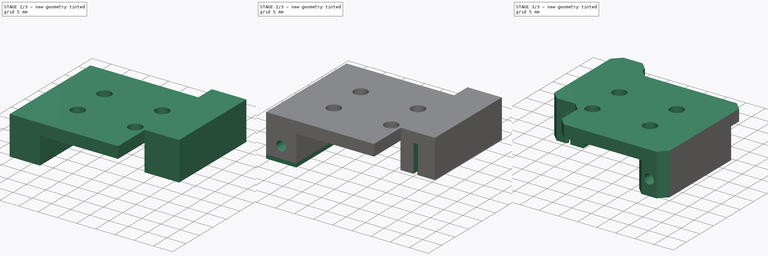
[diagram: build sequence overview — one tinted view per stage of 3, left to right]
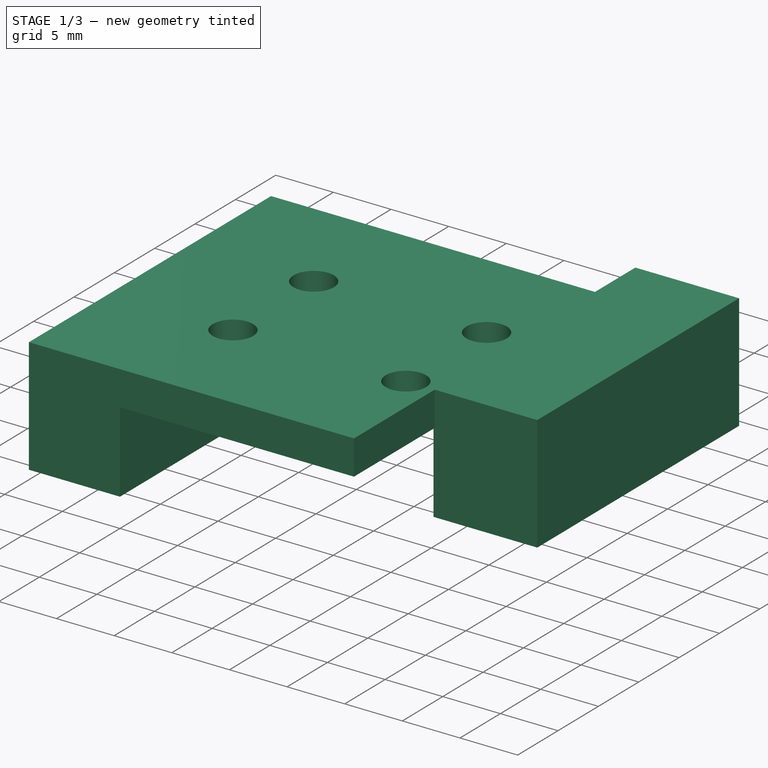
[diagram: stage 1 of 3 — iso view after this stage's code; geometry added in this stage tinted green]
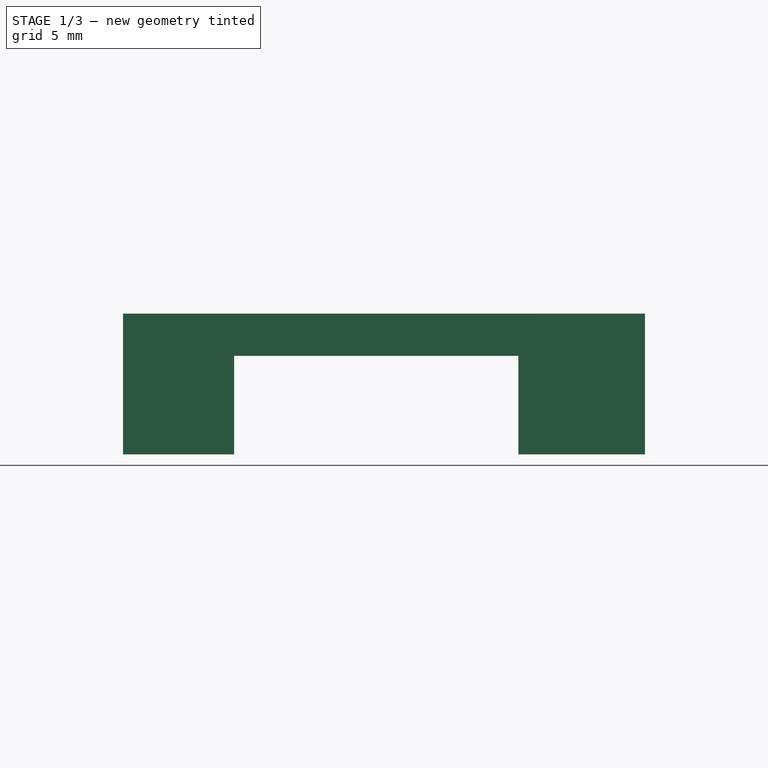
[diagram: stage 1 of 3 — front view after this stage's code; geometry added in this stage tinted green]
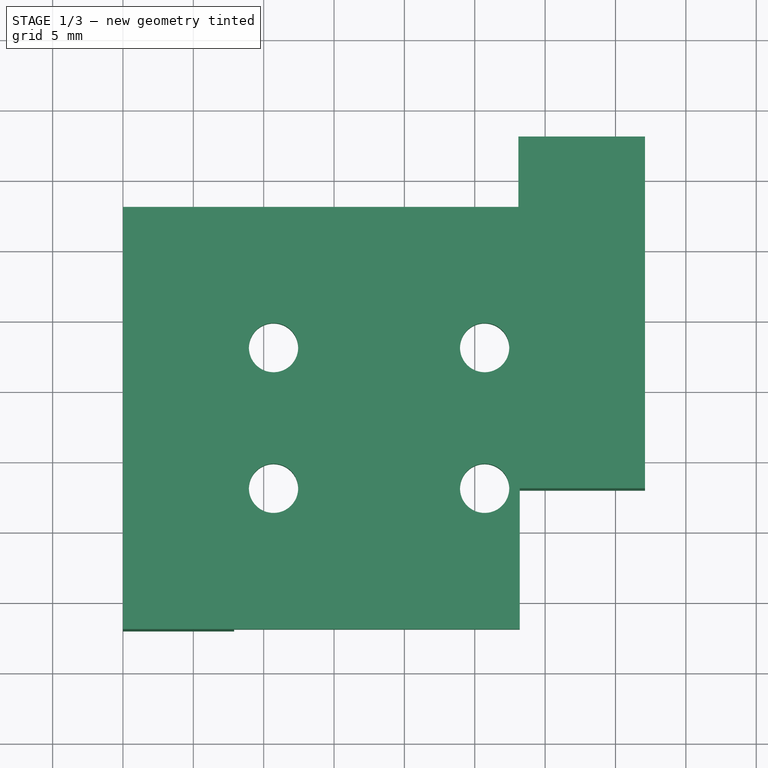
[diagram: stage 1 of 3 — top view after this stage's code; geometry added in this stage tinted green]
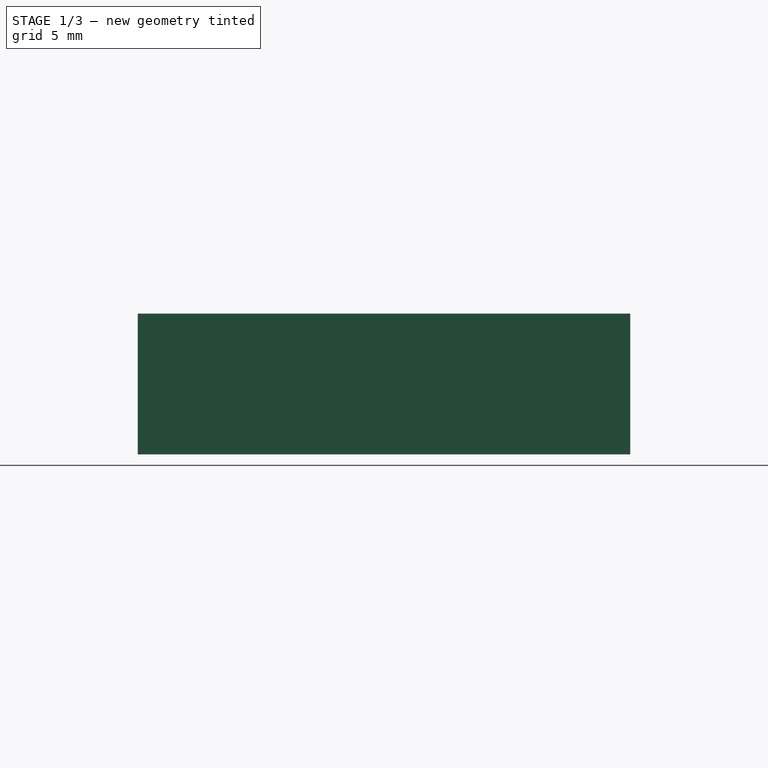
[diagram: stage 1 of 3 — right view after this stage's code; geometry added in this stage tinted green]
FCSTD DOCUMENT  (FreeCAD 0.20R29410 (Git))
Label: z-gantry-backplate-right
License: All rights reserved
LicenseURL: http://en.wikipedia.org/wiki/All_rights_reserved
objects: Sketcher::SketchObject×4, PartDesign::Pad×3, PartDesign::Plane×2, PartDesign::Pocket×1, PartDesign::Hole×1, PartDesign::Chamfer×1, PartDesign::Body×1, Part::Mirroring×1
note: 20 computed .brp shape members not serialized (recipe doc carries the construction recipe); baked Part::Feature solids carry a one-line shape summary decoded from their .brp

FEATURE [Sketcher::SketchObject] Sketch
  FullyConstrained = true
  MapMode = 5
  Support = -> [XY_Plane]
  sketch-geometry (15):
    g0: LineSegment StartX=10.7 StartY=38 StartZ=0 EndX=25.7 EndY=38 EndZ=0
    g1: LineSegment StartX=25.7 StartY=38 StartZ=0 EndX=25.7 EndY=28 EndZ=0
    g2: LineSegment StartX=25.7 StartY=28 StartZ=0 EndX=10.7 EndY=28 EndZ=0
    g3: LineSegment StartX=10.7 StartY=28 StartZ=0 EndX=10.7 EndY=38 EndZ=0
    g4: LineSegment StartX=0 StartY=48 StartZ=0 EndX=28.2 EndY=48 EndZ=0
    g5: LineSegment StartX=28.2 StartY=18 StartZ=0 EndX=-4.1211e-12 EndY=18 EndZ=0
    g6: LineSegment StartX=-4.1201e-12 StartY=18 StartZ=0 EndX=0 EndY=48 EndZ=0
    g7: Circle CenterX=10.7 CenterY=38 CenterZ=0 NormalX=0 NormalY=0 NormalZ=1 AngleXU=0 Radius=1.75
    g8: Circle CenterX=25.7 CenterY=38 CenterZ=0 NormalX=0 NormalY=0 NormalZ=1 AngleXU=0 Radius=1.75
    g9: Circle CenterX=25.7 CenterY=28 CenterZ=0 NormalX=0 NormalY=0 NormalZ=1 AngleXU=0 Radius=1.75
    g10: Circle CenterX=10.7 CenterY=28 CenterZ=0 NormalX=0 NormalY=0 NormalZ=1 AngleXU=0 Radius=1.75
    g11: LineSegment StartX=28.2 StartY=48 StartZ=0 EndX=0 EndY=48 EndZ=0
    g12: LineSegment StartX=0 StartY=48 StartZ=0 EndX=-4.1201e-12 EndY=18 EndZ=0
    g13: LineSegment StartX=-4.1201e-12 StartY=18 StartZ=0 EndX=28.2 EndY=18 EndZ=0
    g14: LineSegment StartX=28.2 StartY=18 StartZ=0 EndX=28.2 EndY=48 EndZ=0
  constraints (39):
    c: Coincident(g0,g1)
    c: Coincident(g1,g2)
    c: Coincident(g2,g3)
    c: Coincident(g3,g0)
    c: Horizontal(g0)
    c: Horizontal(g2)
    c: Vertical(g1)
    c: Vertical(g3)
    c: DistanceX(g0,g0) = 15
    c: DistanceY(g1,g1) = 10
    c: Coincident(g5,g6)
    c: Coincident(g6,g4)
    c: Horizontal(g5)
    c: DistanceY(g5,g4) = 30
    c: Coincident(g7,g0)
    c: Coincident(g8,g0)
    c: Coincident(g9,g1)
    c: Coincident(g10,g2)
    c: Diameter(g10) = 3.5
    c: Distance(g5,g-2) = 28.2
    c: Coincident(g11,g4)
    c: Coincident(g12,g11)
    c: Coincident(g12,g5)
    c: Coincident(g13,g12)
    c: Coincident(g14,g13)
    c: Vertical(g14)
    c: Equal(g9,g10)
    c: Equal(g10,g7)
    c: Equal(g7,g8)
    c: Equal(g11,g13)
    c: Horizontal(g11)
    c: DistanceX(g11,g11) = 28.2
    c: DistanceX(g8,g4) = 2.5
    c: DistanceY(g-1,g12) = 18
    c: DistanceX(g-1,g11) = 1.5e-15
    c: Coincident(g14,g11)
    c: Coincident(g4,g11)
    c: DistanceY(g12,g10) = 10
    c: Coincident(g5,g13)
FEATURE [PartDesign::Pad] Pad
  AllowMultiFace = false
  Direction = (0,0,1)
  Length = 3
  Length2 = 100
  Profile = -> Sketch
  Refine = true
  Type = 0
FEATURE [PartDesign::Plane] DatumPlane
  Length = 60
  MapMode = 5
  Placement = pos=(0,0,3) rot=(0,0,1;0rad)
  ResizeMode = 0
  Support = -> [Pad]
  Width = 60
FEATURE [Sketcher::SketchObject] Sketch002
  FullyConstrained = true
  MapMode = 5
  Placement = pos=(0,0,3) rot=(0,0,1;0rad)
  Support = -> [DatumPlane]
  sketch-geometry (8):
    g0: LineSegment StartX=37.1 StartY=53 StartZ=0 EndX=28.1 EndY=53 EndZ=0
    g1: LineSegment StartX=28.1 StartY=53 StartZ=0 EndX=28.1 EndY=28 EndZ=0
    g2: LineSegment StartX=28.1 StartY=28 StartZ=0 EndX=37.1 EndY=28 EndZ=0
    g3: LineSegment StartX=37.1 StartY=28 StartZ=0 EndX=37.1 EndY=53 EndZ=0
    g4: LineSegment StartX=0 StartY=43 StartZ=0 EndX=7.9 EndY=43 EndZ=0
    g5: LineSegment StartX=7.9 StartY=43 StartZ=0 EndX=7.9 EndY=18 EndZ=0
    g6: LineSegment StartX=7.9 StartY=18 StartZ=0 EndX=0 EndY=18 EndZ=0
    g7: LineSegment StartX=0 StartY=18 StartZ=0 EndX=0 EndY=43 EndZ=0
  constraints (24):
    c: Coincident(g0,g1)
    c: Coincident(g1,g2)
    c: Horizontal(g2)
    c: Coincident(g2,g3)
    c: Coincident(g3,g0)
    c: Vertical(g3)
    c: DistanceY(g3,g3) = 25
    c: Vertical(g1)
    c: Equal(g1,g3)
    c: DistanceX(g0,g0) = 9
    c: DistanceX(g-1,g1) = 28.1
    c: DistanceY(g-1,g1) = 28
    c: Coincident(g4,g5)
    c: Coincident(g5,g6)
    c: Coincident(g6,g7)
    c: Coincident(g7,g4)
    c: Horizontal(g4)
    c: Horizontal(g6)
    c: Vertical(g5)
    c: Vertical(g7)
    c: PointOnObject(g4,g-2)
    c: DistanceX(g4,g0) = 20.2
    c: DistanceY(g-1,g6) = 18
    c: DistanceY(g7,g7) = 25
FEATURE [PartDesign::Pad] Pad002
  AllowMultiFace = false
  BaseFeature = -> Pad
  Direction = (0,0,1)
  Length = 10
  Length2 = 100
  Profile = -> Sketch002
  Refine = true
  Reversed = true
  Type = 0
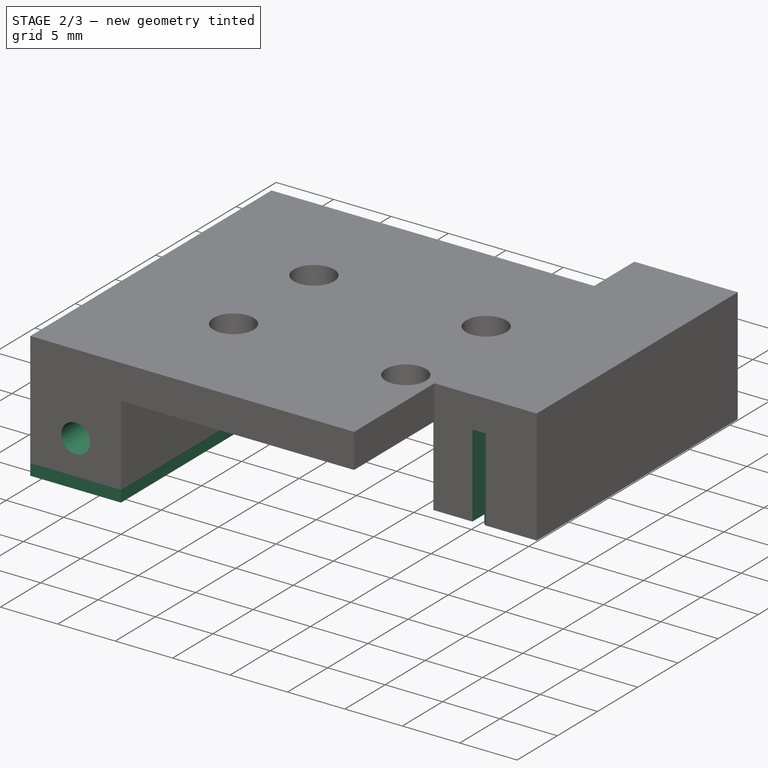
[diagram: stage 2 of 3 — iso view after this stage's code; geometry added in this stage tinted green]
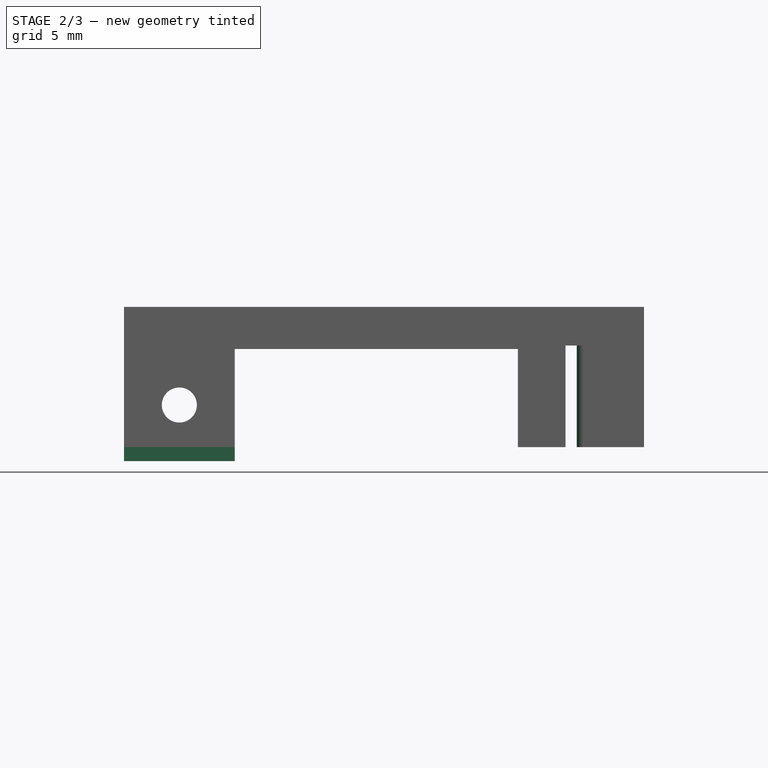
[diagram: stage 2 of 3 — front view after this stage's code; geometry added in this stage tinted green]
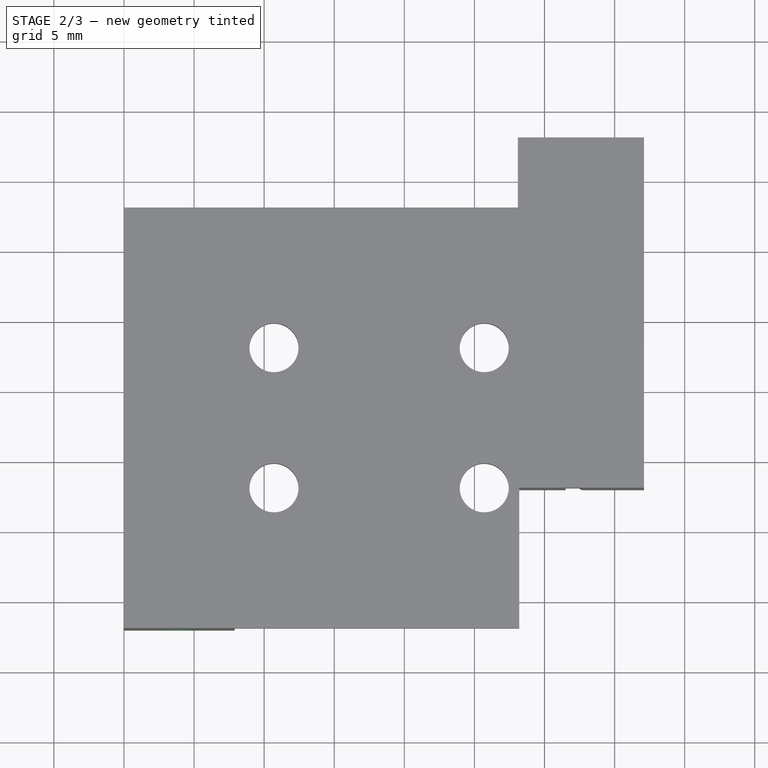
[diagram: stage 2 of 3 — top view after this stage's code; geometry added in this stage tinted green]
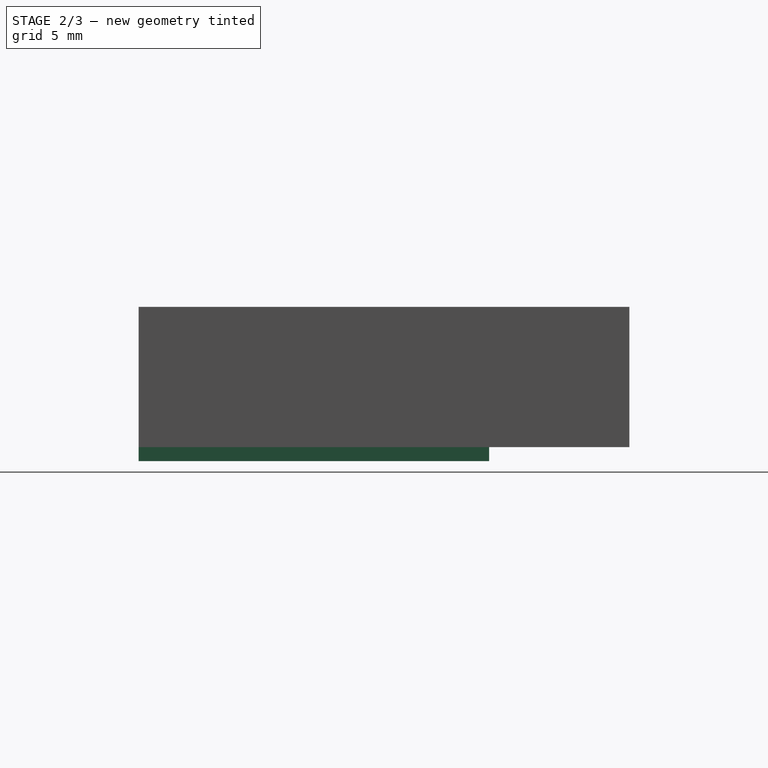
[diagram: stage 2 of 3 — right view after this stage's code; geometry added in this stage tinted green]
FEATURE [Sketcher::SketchObject] Sketch003  label="Teeth"
  AttachmentOffset = pos=(0,-66,0) rot=(0,0,1;0rad)
  FullyConstrained = true
  MapMode = 2
  Placement = pos=(-0.5,10,-7) rot=(0,0,1;0rad)
  sketch-geometry (34):
    g0: LineSegment StartX=33.3 StartY=48 StartZ=0 EndX=32 EndY=48 EndZ=0
    g1: LineSegment StartX=32 StartY=48 StartZ=0 EndX=32 EndY=18 EndZ=0
    g2: LineSegment StartX=32 StartY=18 StartZ=0 EndX=33.3 EndY=18 EndZ=0
    g3: LineSegment StartX=33.3 StartY=48 StartZ=0 EndX=33.3 EndY=18 EndZ=0
    g4: ArcOfCircle CenterX=33.3 CenterY=18.5 CenterZ=0 NormalX=0 NormalY=0 NormalZ=1 AngleXU=0 Radius=0.5 StartAngle=1.5708 EndAngle=4.71239
    g5: ArcOfCircle CenterX=33.3 CenterY=19.5 CenterZ=0 NormalX=0 NormalY=0 NormalZ=1 AngleXU=0 Radius=0.5 StartAngle=4.71239 EndAngle=7.85398
    g6: ArcOfCircle CenterX=33.3 CenterY=20.5 CenterZ=0 NormalX=0 NormalY=0 NormalZ=1 AngleXU=0 Radius=0.5 StartAngle=1.5708 EndAngle=4.71239
    g7: ArcOfCircle CenterX=33.3 CenterY=21.5 CenterZ=0 NormalX=0 NormalY=0 NormalZ=1 AngleXU=0 Radius=0.5 StartAngle=4.71239 EndAngle=7.85398
    g8: ArcOfCircle CenterX=33.3 CenterY=22.5 CenterZ=0 NormalX=0 NormalY=0 NormalZ=1 AngleXU=0 Radius=0.5 StartAngle=1.5708 EndAngle=4.71239
    g9: ArcOfCircle CenterX=33.3 CenterY=23.5 CenterZ=0 NormalX=0 NormalY=0 NormalZ=1 AngleXU=0 Radius=0.5 StartAngle=4.71239 EndAngle=7.85398
    g10: ArcOfCircle CenterX=33.3 CenterY=24.5 CenterZ=0 NormalX=0 NormalY=0 NormalZ=1 AngleXU=0 Radius=0.5 StartAngle=1.5708 EndAngle=4.71239
    g11: ArcOfCircle CenterX=33.3 CenterY=25.5 CenterZ=0 NormalX=0 NormalY=0 NormalZ=1 AngleXU=0 Radius=0.5 StartAngle=4.71239 EndAngle=7.85398
    g12: ArcOfCircle CenterX=33.3 CenterY=26.5 CenterZ=0 NormalX=0 NormalY=0 NormalZ=1 AngleXU=0 Radius=0.5 StartAngle=1.5708 EndAngle=4.71239
    g13: ArcOfCircle CenterX=33.3 CenterY=27.5 CenterZ=0 NormalX=0 NormalY=0 NormalZ=1 AngleXU=0 Radius=0.5 StartAngle=4.71239 EndAngle=7.85398
    g14: ArcOfCircle CenterX=33.3 CenterY=28.5 CenterZ=0 NormalX=0 NormalY=0 NormalZ=1 AngleXU=0 Radius=0.5 StartAngle=1.5708 EndAngle=4.71239
    g15: ArcOfCircle CenterX=33.3 CenterY=29.5 CenterZ=0 NormalX=0 NormalY=0 NormalZ=1 AngleXU=0 Radius=0.5 StartAngle=4.71239 EndAngle=7.85398
    g16: ArcOfCircle CenterX=33.3 CenterY=30.5 CenterZ=0 NormalX=0 NormalY=0 NormalZ=1 AngleXU=0 Radius=0.5 StartAngle=1.5708 EndAngle=4.71239
    g17: ArcOfCircle CenterX=33.3 CenterY=31.5 CenterZ=0 NormalX=0 NormalY=0 NormalZ=1 AngleXU=0 Radius=0.5 StartAngle=4.71239 EndAngle=7.85398
    g18: ArcOfCircle CenterX=33.3 CenterY=32.5 CenterZ=0 NormalX=0 NormalY=0 NormalZ=1 AngleXU=0 Radius=0.5 StartAngle=1.5708 EndAngle=4.71239
    g19: ArcOfCircle CenterX=33.3 CenterY=33.5 CenterZ=0 NormalX=0 NormalY=0 NormalZ=1 AngleXU=0 Radius=0.5 StartAngle=4.71239 EndAngle=7.85398
    g20: ArcOfCircle CenterX=33.3 CenterY=34.5 CenterZ=0 NormalX=0 NormalY=0 NormalZ=1 AngleXU=0 Radius=0.5 StartAngle=1.5708 EndAngle=4.71239
    g21: ArcOfCircle CenterX=33.3 CenterY=35.5 CenterZ=0 NormalX=0 NormalY=0 NormalZ=1 AngleXU=0 Radius=0.5 StartAngle=4.71239 EndAngle=7.85398
    g22: ArcOfCircle CenterX=33.3 CenterY=36.5 CenterZ=0 NormalX=0 NormalY=0 NormalZ=1 AngleXU=0 Radius=0.5 StartAngle=1.5708 EndAngle=4.71239
    g23: ArcOfCircle CenterX=33.3 CenterY=37.5 CenterZ=0 NormalX=0 NormalY=0 NormalZ=1 AngleXU=0 Radius=0.5 StartAngle=4.71239 EndAngle=7.85398
    g24: ArcOfCircle CenterX=33.3 CenterY=38.5 CenterZ=0 NormalX=0 NormalY=0 NormalZ=1 AngleXU=0 Radius=0.5 StartAngle=1.5708 EndAngle=4.71239
    g25: ArcOfCircle CenterX=33.3 CenterY=39.5 CenterZ=0 NormalX=0 NormalY=0 NormalZ=1 AngleXU=0 Radius=0.5 StartAngle=4.71239 EndAngle=7.85398
    g26: ArcOfCircle CenterX=33.3 CenterY=40.5 CenterZ=0 NormalX=0 NormalY=0 NormalZ=1 AngleXU=0 Radius=0.5 StartAngle=1.5708 EndAngle=4.71239
    g27: ArcOfCircle CenterX=33.3 CenterY=41.5 CenterZ=0 NormalX=0 NormalY=0 NormalZ=1 AngleXU=0 Radius=0.5 StartAngle=4.71239 EndAngle=7.85398
    g28: ArcOfCircle CenterX=33.3 CenterY=42.5 CenterZ=0 NormalX=0 NormalY=0 NormalZ=1 AngleXU=0 Radius=0.5 StartAngle=1.5708 EndAngle=4.71239
    g29: ArcOfCircle CenterX=33.3 CenterY=43.5 CenterZ=0 NormalX=0 NormalY=0 NormalZ=1 AngleXU=0 Radius=0.5 StartAngle=4.71239 EndAngle=7.85398
    g30: ArcOfCircle CenterX=33.3 CenterY=44.5 CenterZ=0 NormalX=0 NormalY=0 NormalZ=1 AngleXU=0 Radius=0.5 StartAngle=1.5708 EndAngle=4.71239
    g31: ArcOfCircle CenterX=33.3 CenterY=45.5 CenterZ=0 NormalX=0 NormalY=0 NormalZ=1 AngleXU=0 Radius=0.5 StartAngle=4.71239 EndAngle=7.85398
    g32: ArcOfCircle CenterX=33.3 CenterY=46.5 CenterZ=0 NormalX=0 NormalY=0 NormalZ=1 AngleXU=0 Radius=0.5 StartAngle=1.5708 EndAngle=4.71239
    g33: ArcOfCircle CenterX=33.3 CenterY=47.5 CenterZ=0 NormalX=0 NormalY=0 NormalZ=1 AngleXU=0 Radius=0.5 StartAngle=4.71239 EndAngle=7.85398
  constraints (131):
    c: Coincident(g0,g1)
    c: Vertical(g1)
    c: Coincident(g1,g2)
    c: Coincident(g3,g0)
    c: Coincident(g3,g2)
    c: Vertical(g3)
    c: PointOnObject(g4,g3)
    c: Coincident(g4,g2)
    c: PointOnObject(g4,g3)
    c: PointOnObject(g5,g3)
    c: Coincident(g5,g4)
    c: PointOnObject(g5,g3)
    c: Diameter(g5) = 1
    c: Diameter(g4) = 1
    c: PointOnObject(g6,g3)
    c: Coincident(g6,g5)
    c: PointOnObject(g6,g3)
    c: PointOnObject(g7,g3)
    c: Coincident(g7,g6)
    c: PointOnObject(g7,g3)
    c: PointOnObject(g8,g3)
    c: Coincident(g8,g7)
    c: PointOnObject(g8,g3)
    c: PointOnObject(g9,g3)
    c: Coincident(g9,g8)
    c: PointOnObject(g9,g3)
    c: PointOnObject(g10,g3)
    c: Coincident(g10,g9)
    c: PointOnObject(g10,g3)
    c: PointOnObject(g11,g3)
    c: Coincident(g11,g10)
    c: PointOnObject(g11,g3)
    c: PointOnObject(g12,g3)
    c: Coincident(g12,g11)
    c: PointOnObject(g12,g3)
    c: PointOnObject(g13,g3)
    c: Coincident(g13,g12)
    c: PointOnObject(g13,g3)
    c: PointOnObject(g14,g3)
    c: Coincident(g14,g13)
    c: PointOnObject(g14,g3)
    c: PointOnObject(g15,g3)
    c: Coincident(g15,g14)
    c: PointOnObject(g15,g3)
    c: PointOnObject(g16,g3)
    c: Coincident(g16,g15)
    c: PointOnObject(g16,g3)
    c: PointOnObject(g17,g3)
    c: Coincident(g17,g16)
    c: PointOnObject(g17,g3)
    c: PointOnObject(g18,g3)
    c: Coincident(g18,g17)
    c: PointOnObject(g18,g3)
    c: PointOnObject(g19,g3)
    c: Coincident(g19,g18)
    c: PointOnObject(g19,g3)
    c: PointOnObject(g20,g3)
    c: Coincident(g20,g19)
    c: PointOnObject(g20,g3)
    c: PointOnObject(g21,g3)
    c: Coincident(g21,g20)
    c: PointOnObject(g21,g3)
    c: PointOnObject(g22,g3)
    c: Coincident(g22,g21)
    c: PointOnObject(g22,g3)
    c: PointOnObject(g23,g3)
    c: Coincident(g23,g22)
    c: PointOnObject(g23,g3)
    c: PointOnObject(g24,g3)
    c: Coincident(g24,g23)
    c: PointOnObject(g24,g3)
    c: PointOnObject(g25,g3)
    c: Coincident(g25,g24)
    c: PointOnObject(g25,g3)
    c: PointOnObject(g26,g3)
    c: Coincident(g26,g25)
    c: PointOnObject(g26,g3)
    c: PointOnObject(g27,g3)
    c: Coincident(g27,g26)
    c: PointOnObject(g27,g3)
    c: PointOnObject(g28,g3)
    c: Coincident(g28,g27)
    c: PointOnObject(g28,g3)
    c: PointOnObject(g29,g3)
    c: Coincident(g29,g28)
    c: PointOnObject(g29,g3)
    c: PointOnObject(g30,g3)
    c: Coincident(g30,g29)
    c: PointOnObject(g30,g3)
    c: PointOnObject(g31,g3)
    c: Coincident(g31,g30)
    c: PointOnObject(g31,g3)
    c: PointOnObject(g32,g3)
    c: Coincident(g32,g31)
    c: PointOnObject(g32,g3)
    c: PointOnObject(g33,g3)
    c: Coincident(g33,g32)
    c: Coincident(g33,g0)
    c: Horizontal(g0)
    c: DistanceX(g2,g2) = 1.3
    c: Horizontal(g2)
    c: DistanceX(g-1,g1) = 32
    c: DistanceY(g-1,g1) = 18
    c: Equal(g5,g7)
    c: Equal(g7,g9)
    c: Equal(g9,g11)
    c: Equal(g11,g13)
    c: Equal(g13,g15)
    c: Equal(g15,g17)
    c: Equal(g17,g19)
    c: Equal(g19,g21)
    c: Equal(g21,g23)
    c: Equal(g23,g25)
    c: Equal(g25,g27)
    c: Equal(g27,g29)
    c: Equal(g29,g31)
    c: Equal(g31,g33)
    c: Equal(g32,g30)
    c: Equal(g30,g28)
    c: Equal(g28,g26)
    c: Equal(g26,g24)
    c: Equal(g24,g22)
    c: Equal(g22,g20)
    c: Equal(g20,g18)
    c: Equal(g18,g16)
    c: Equal(g16,g14)
    c: Equal(g14,g12)
    c: Equal(g12,g10)
    c: Equal(g10,g8)
    c: Equal(g8,g6)
    c: Equal(g6,g4)
FEATURE [PartDesign::Pocket] Pocket
  AllowMultiFace = false
  BaseFeature = -> Pad002
  Direction = (0,0,-1)
  Length = 7.25
  Length2 = 100
  Profile = -> Sketch003
  Refine = true
  Reversed = true
  Type = 0
FEATURE [PartDesign::Plane] DatumPlane001
  Length = 60
  MapMode = 5
  Placement = pos=(0,43,0) rot=(0,0.707107,0.707107;3.14159rad)
  ResizeMode = 0
  Support = -> [Pocket]
  Width = 60
FEATURE [Sketcher::SketchObject] Sketch004
  FullyConstrained = true
  MapMode = 5
  Placement = pos=(0,43,0) rot=(0,0.707107,0.707107;3.14159rad)
  Support = -> [DatumPlane001]
  sketch-geometry (3):
    g0: LineSegment StartX=0 StartY=0 StartZ=0 EndX=-7.9 EndY=0 EndZ=0
    g1: GeomPoint X=-3.95 Y=0 Z=0
    g2: Circle CenterX=-3.95 CenterY=-4 CenterZ=0 NormalX=0 NormalY=0 NormalZ=1 AngleXU=0 Radius=1.35
  constraints (7):
    c: Coincident(g0,g-1)
    c: PointOnObject(g0,g-1)
    c: DistanceX(g0,g0) = 7.9
    c: Symmetric(g0,g0,g1)
    c: Vertical(g2,g1)
    c: Diameter(g2) = 2.7
    c: DistanceY(g2,g1) = 4
FEATURE [PartDesign::Pad] Pad003
  AlongSketchNormal = false
  BaseFeature = -> Pocket
  Direction = (0,0,-1)
  Length = 1
  Length2 = 10
  Profile = -> Pocket [Face46]
  Type = 0
FEATURE [PartDesign::Hole] Hole
  BaseFeature = -> Pad003
  CustomThreadClearance = 0
  Depth = 30
  DepthType = 0
  Diameter = 2.5
  DrillForDepth = false
  DrillPoint = 1
  DrillPointAngle = 118
  HoleCutCountersinkAngle = 90
  HoleCutCustomValues = false
  HoleCutDepth = 0
  HoleCutDiameter = 6.3
  HoleCutType = 2
  ModelThread = false
  Profile = -> Sketch004
  Tapered = false
  TaperedAngle = 90
  ThreadClass = 0
  ThreadDepth = 30
  ThreadDepthType = 0
  ThreadDirection = 0
  ThreadFit = 0
  ThreadSize = 9
  ThreadType = 1
  Threaded = true
  UseCustomThreadClearance = false
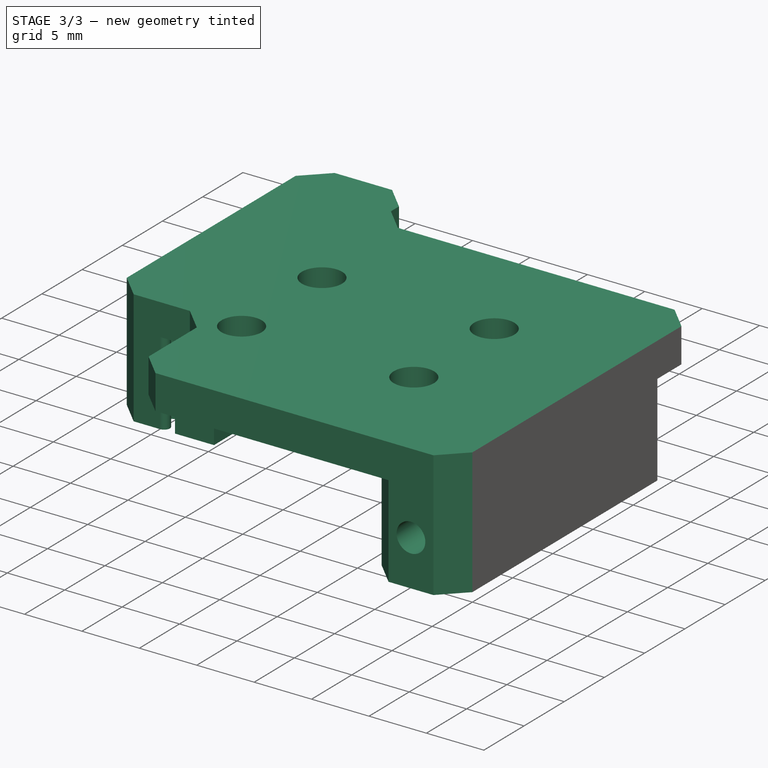
[diagram: stage 3 of 3 — iso view after this stage's code; geometry added in this stage tinted green]
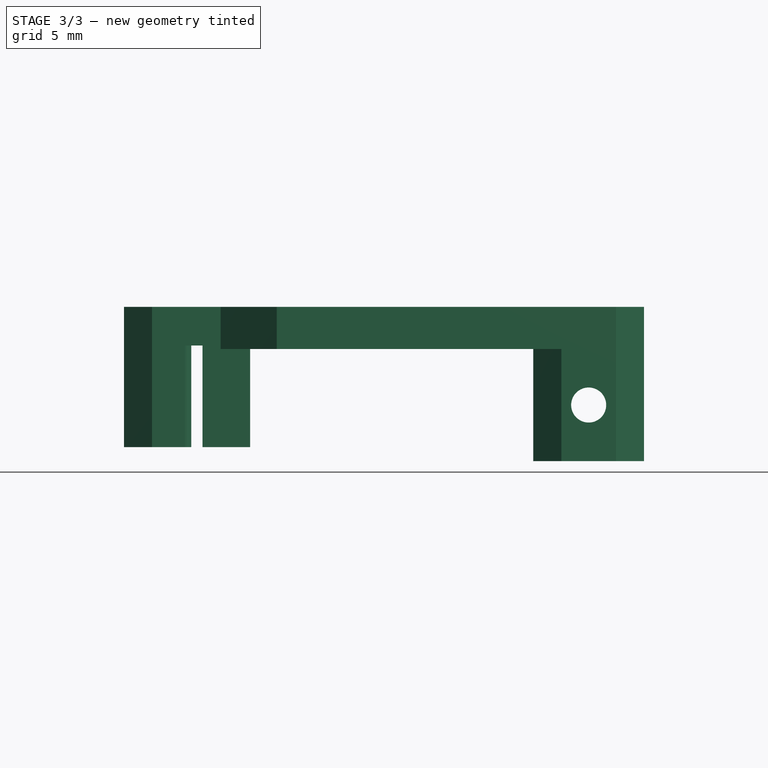
[diagram: stage 3 of 3 — front view after this stage's code; geometry added in this stage tinted green]
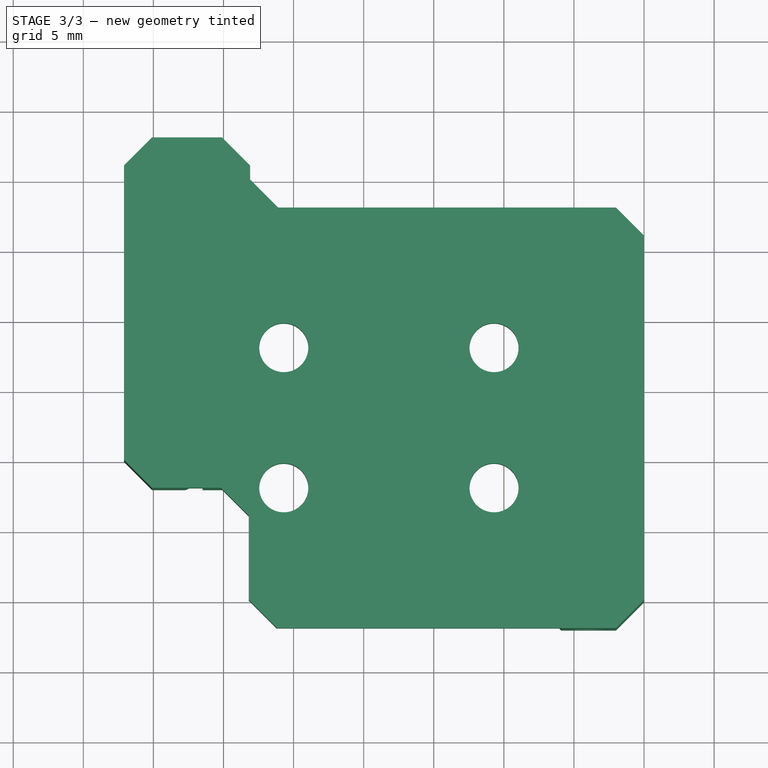
[diagram: stage 3 of 3 — top view after this stage's code; geometry added in this stage tinted green]
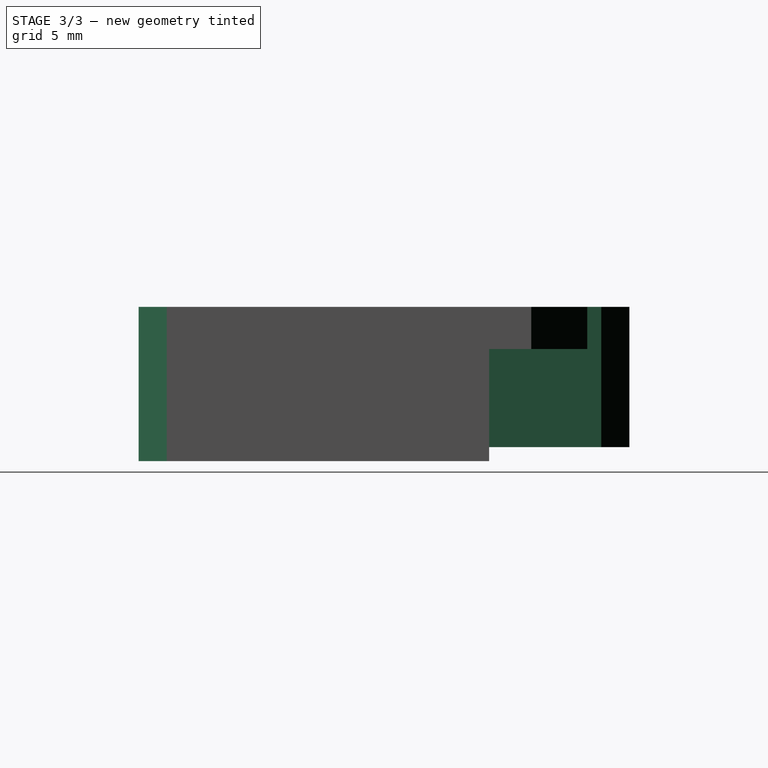
[diagram: stage 3 of 3 — right view after this stage's code; geometry added in this stage tinted green]
FEATURE [PartDesign::Chamfer] Chamfer
  Angle = 45
  Base = -> Hole [Edge15,Edge2,Edge98,Edge101,Edge102,Edge66,Edge1,Edge140,Edge137,Edge6,Edge96]
  BaseFeature = -> Hole
  ChamferType = 0
  FlipDirection = false
  Size = 2
  Size2 = 1
  SupportTransform = false
  UseAllEdges = false
FEATURE [PartDesign::Body] Body  label="inverted-body"
  Group = -> [Sketch,Pad,DatumPlane,Sketch002,Pad002,Sketch003,Pocket,DatumPlane001,Sketch004,Pad003,Hole,Chamfer]
  Origin = -> Origin
  Tip = -> Chamfer
FEATURE [Part::Mirroring] Part__Mirroring  label="Body"
  Base = (0,0,0)
  Normal = (1,0,0)
  Source = -> Body
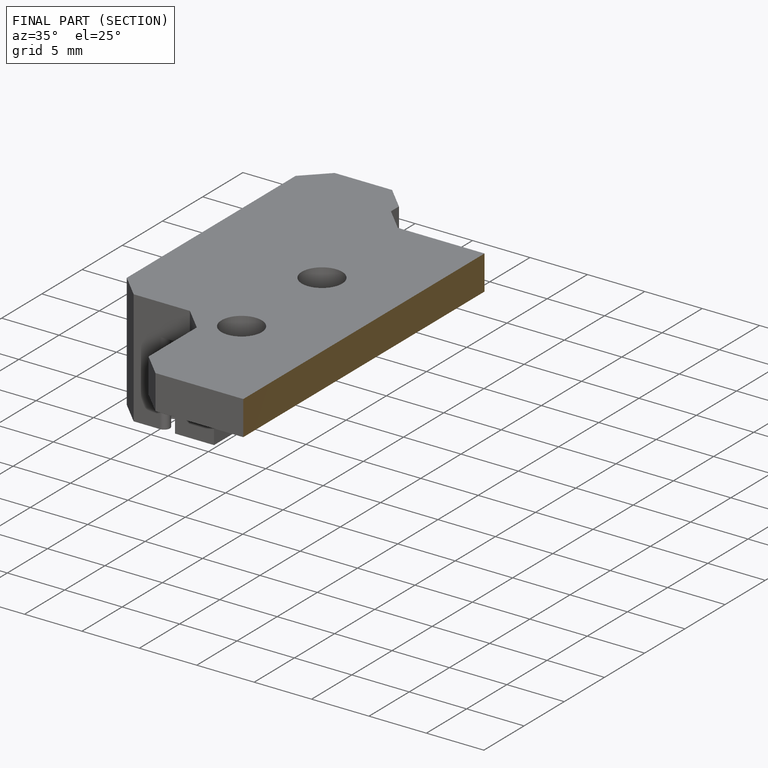
[diagram: finished part — half-section view (interior)]
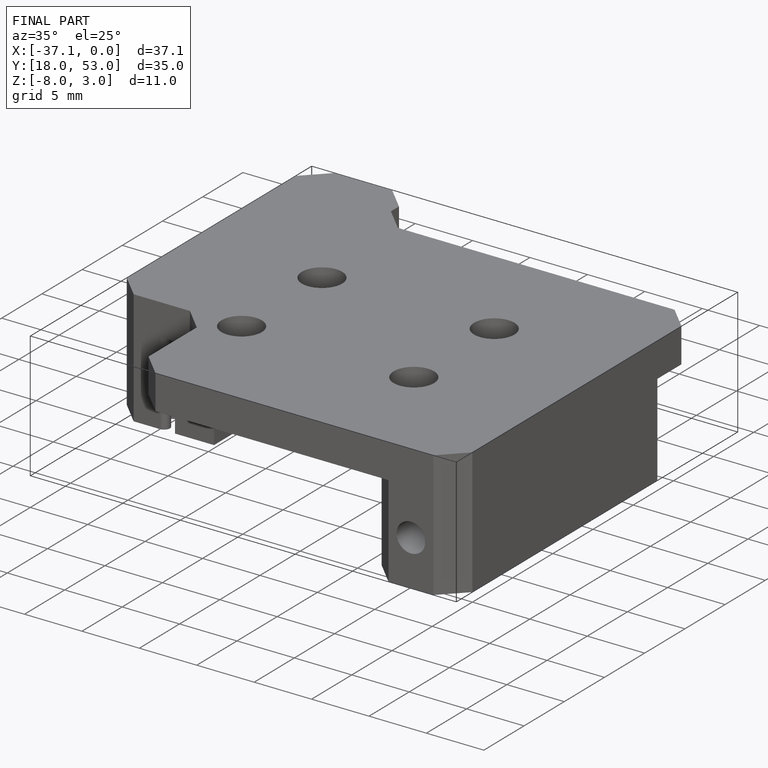
[diagram: finished part — iso view with bounding-box wireframe]
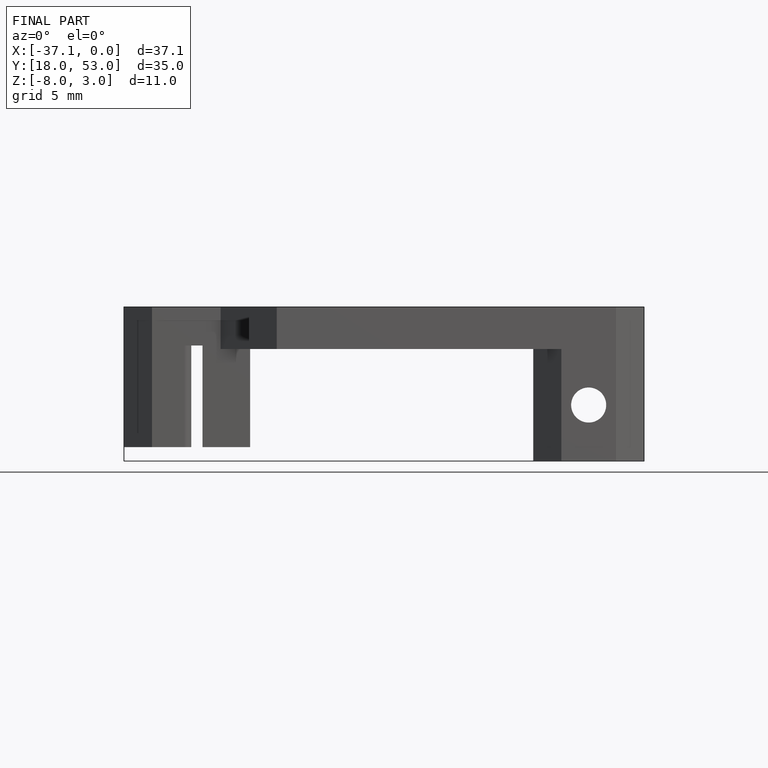
[diagram: finished part — front view with bounding-box wireframe]
